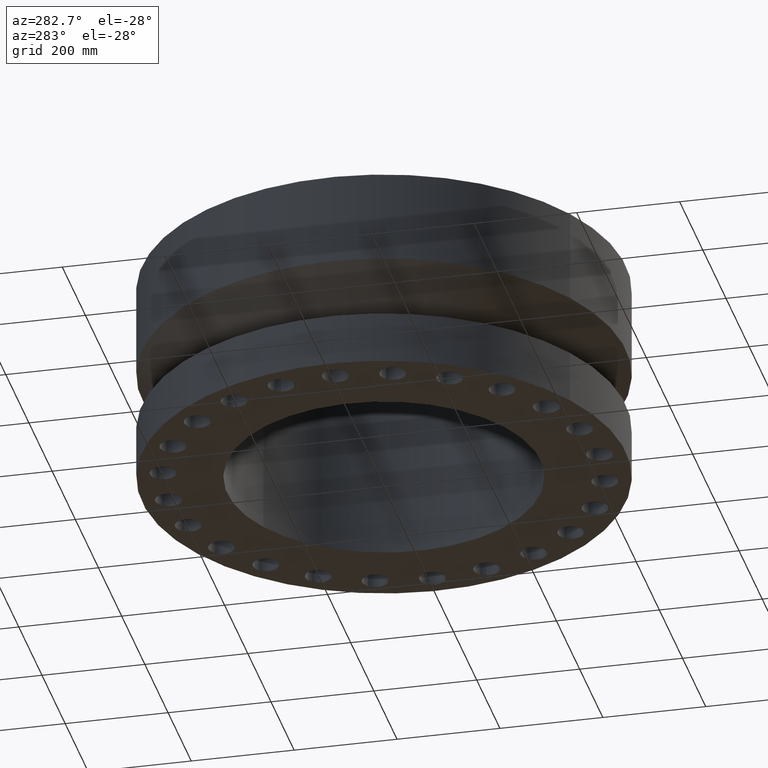
[diagram: clean part render]
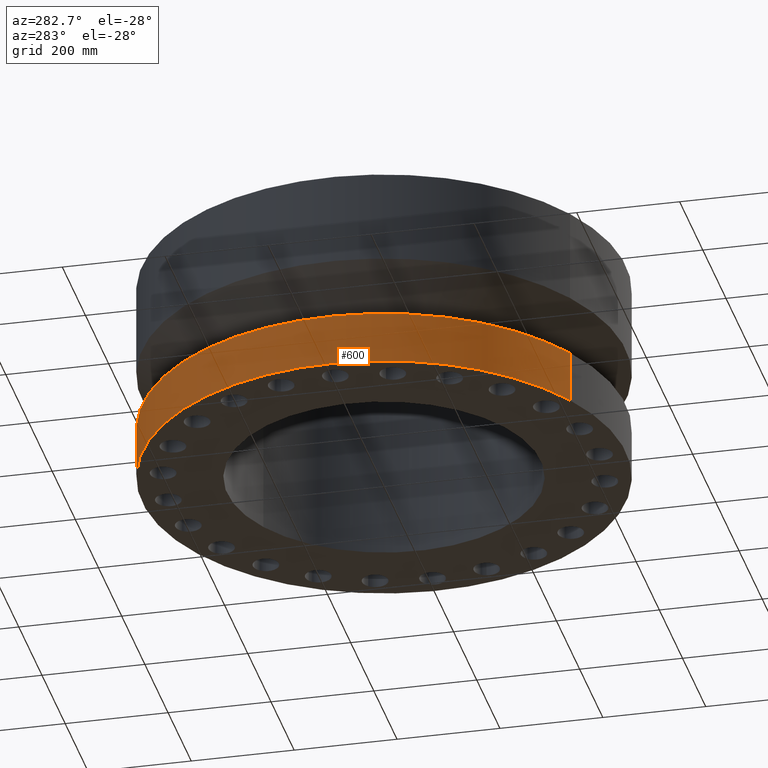
[diagram: same view with one face highlighted and labeled with its STEP entity id]
A machine part, auxiliary view. The second image highlights one B-rep face of the part: STEP entity #600.
In plain terms, the highlighted cylindrical surface (partial cylindrical patch) has radius 469.9 mm, axis along (0, 0, -1).
Its self-contained STEP definition (entity closure, byte-faithful):
#91=AXIS2_PLACEMENT_3D('Circle Axis2P3D',#89,#90,$) ;
#573=AXIS2_PLACEMENT_3D('Cylinder Axis2P3D',#570,#571,#572) ;
#577=AXIS2_PLACEMENT_3D('Circle Axis2P3D',#575,#576,$) ;
#84=CARTESIAN_POINT('Vertex',(8.86937246421,16.235277395,4.00000000002)) ;
#86=CARTESIAN_POINT('Vertex',(-8.86937246421,-16.235277395,4.00000000002)) ;
#89=CARTESIAN_POINT('Axis2P3D Location',(0.,0.,4.00000000002)) ;
#570=CARTESIAN_POINT('Axis2P3D Location',(0.,0.,7.75000000003)) ;
#575=CARTESIAN_POINT('Axis2P3D Location',(0.,0.,2.23792987641E-015)) ;
#579=CARTESIAN_POINT('Vertex',(-8.86937246421,-16.235277395,2.23792987641E-015)) ;
#581=CARTESIAN_POINT('Vertex',(8.86937246421,16.235277395,2.23792987641E-015)) ;
#584=CARTESIAN_POINT('Line Origine',(-8.86937246421,-16.235277395,12.1979537139)) ;
#589=CARTESIAN_POINT('Line Origine',(8.86937246421,16.235277395,12.1979537139)) ;
#90=DIRECTION('Axis2P3D Direction',(0.,0.,-0.0393700787402)) ;
#571=DIRECTION('Axis2P3D Direction',(0.,0.,-0.0393700787402)) ;
#572=DIRECTION('Axis2P3D XDirection',(-0.0188750212049,-0.0345504945626,0.)) ;
#576=DIRECTION('Axis2P3D Direction',(0.,0.,-0.0393700787402)) ;
#585=DIRECTION('Vector Direction',(0.,0.,-0.0393700787402)) ;
#590=DIRECTION('Vector Direction',(0.,0.,-0.0393700787402)) ;
#586=VECTOR('Line Direction',#585,0.0393700787402) ;
#591=VECTOR('Line Direction',#590,0.0393700787402) ;
#595=ORIENTED_EDGE('',*,*,#583,.F.) ;
#596=ORIENTED_EDGE('',*,*,#588,.T.) ;
#597=ORIENTED_EDGE('',*,*,#93,.T.) ;
#598=ORIENTED_EDGE('',*,*,#593,.F.) ;
#600=ADVANCED_FACE('PartBody',(#599),#574,.T.) ;
#92=CIRCLE('generated circle',#91,18.5000000001) ;
#578=CIRCLE('generated circle',#577,18.5000000001) ;
#574=CYLINDRICAL_SURFACE('generated cylinder',#573,18.5000000001) ;
#93=EDGE_CURVE('',#87,#85,#92,.T.) ;
#583=EDGE_CURVE('',#580,#582,#578,.T.) ;
#588=EDGE_CURVE('',#580,#87,#587,.F.) ;
#593=EDGE_CURVE('',#582,#85,#592,.F.) ;
#594=EDGE_LOOP('',(#595,#596,#597,#598)) ;
#599=FACE_OUTER_BOUND('',#594,.T.) ;
#587=LINE('Line',#584,#586) ;
#592=LINE('Line',#589,#591) ;
#85=VERTEX_POINT('',#84) ;
#87=VERTEX_POINT('',#86) ;
#580=VERTEX_POINT('',#579) ;
#582=VERTEX_POINT('',#581) ;